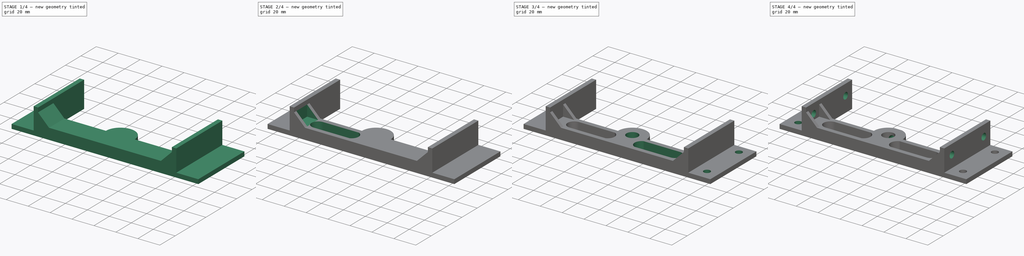
[diagram: build sequence overview — one tinted view per stage of 4, left to right]
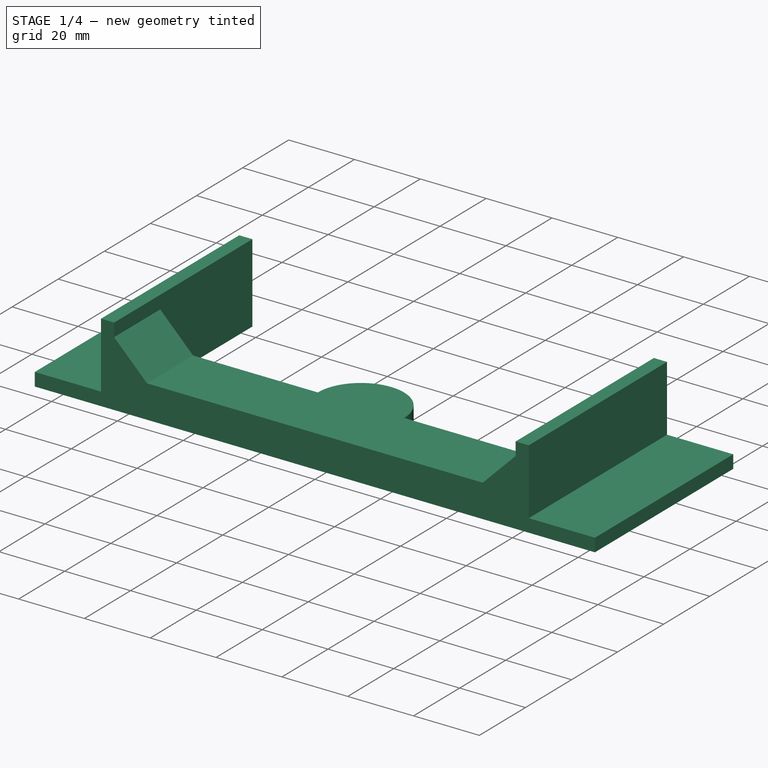
[diagram: stage 1 of 4 — iso view after this stage's code; geometry added in this stage tinted green]
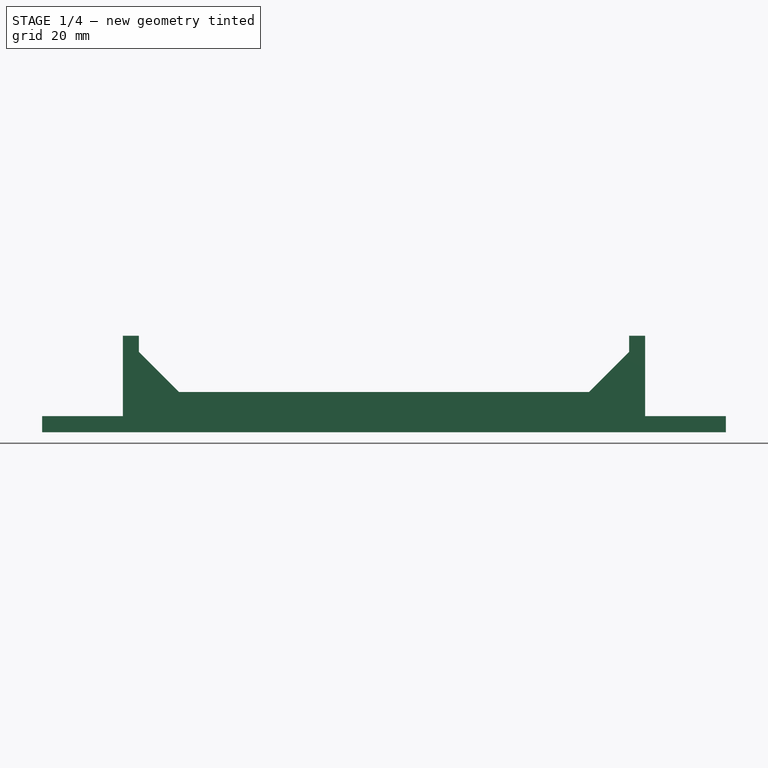
[diagram: stage 1 of 4 — front view after this stage's code; geometry added in this stage tinted green]
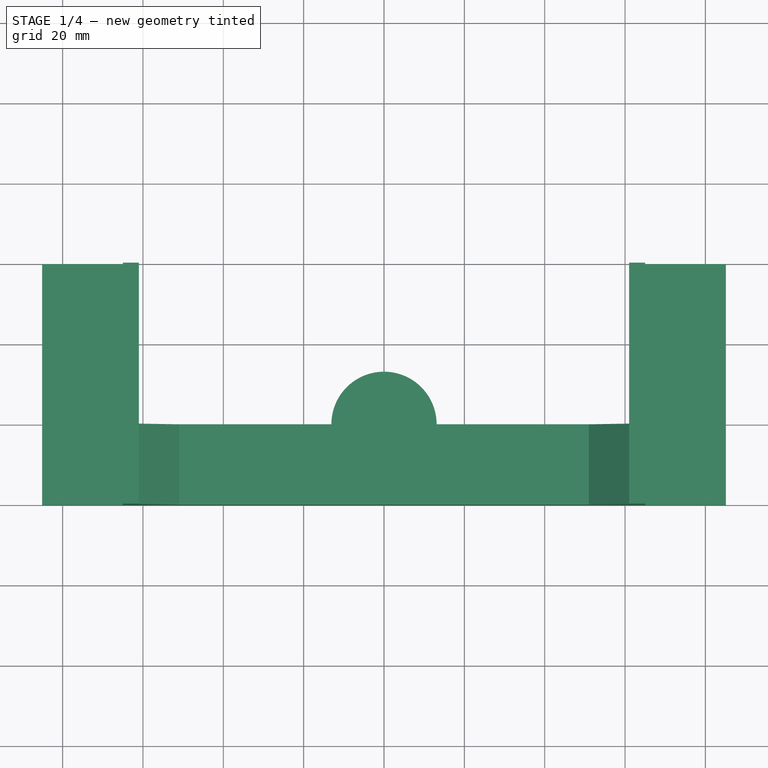
[diagram: stage 1 of 4 — top view after this stage's code; geometry added in this stage tinted green]
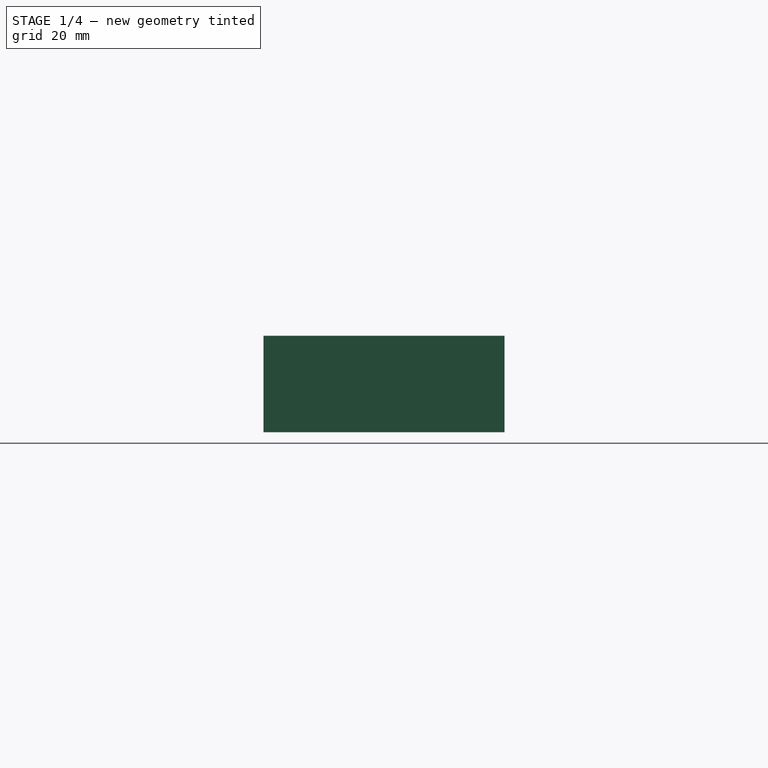
[diagram: stage 1 of 4 — right view after this stage's code; geometry added in this stage tinted green]
FCSTD DOCUMENT
Label: Z_Top
objects: Sketcher::SketchObject×11, PartDesign::Pocket×10, PartDesign::Mirrored×3, PartDesign::Pad×1, Part::Feature×1
note: 37 computed .brp shape members not serialized (recipe doc carries the construction recipe); baked Part::Feature solids carry a one-line shape summary decoded from their .brp

FEATURE [Sketcher::SketchObject] Sketch
  sketch-geometry (11):
    g0: LineSegment StartX=-85.1 StartY=60 StartZ=0 EndX=-61 EndY=60 EndZ=0
    g1: LineSegment StartX=85.1 StartY=60 StartZ=0 EndX=85.1 EndY=0 EndZ=0
    g2: LineSegment StartX=85.1 StartY=0 StartZ=0 EndX=-85.1 EndY=0 EndZ=0
    g3: LineSegment StartX=-85.1 StartY=0 StartZ=0 EndX=-85.1 EndY=60 EndZ=0
    g4: GeomPoint [constr] X=0 Y=0 Z=0
    g5: LineSegment StartX=61 StartY=60 StartZ=0 EndX=61 EndY=20 EndZ=0
    g6: LineSegment StartX=61 StartY=20 StartZ=0 EndX=13.1 EndY=20 EndZ=0
    g7: LineSegment StartX=-61 StartY=20 StartZ=0 EndX=-61 EndY=60 EndZ=0
    g8: LineSegment StartX=61 StartY=60 StartZ=0 EndX=85.1 EndY=60 EndZ=0
    g9: ArcOfCircle CenterX=0 CenterY=20 CenterZ=0 NormalX=0 NormalY=0 NormalZ=1 Radius=13.1 StartAngle=0 EndAngle=3.14159
    g10: LineSegment StartX=-13.1 StartY=20 StartZ=0 EndX=-61 EndY=20 EndZ=0
  constraints (29):
    c: Coincident(g8,g1)
    c: Coincident(g1,g2)
    c: Coincident(g2,g3)
    c: Coincident(g3,g0)
    c: Horizontal(g0)
    c: Horizontal(g2)
    c: Vertical(g1)
    c: Vertical(g3)
    c: Symmetric(g2,g1,g4)
    c: Coincident(g4,g-1)
    c: DistanceX(g2) = -170.2
    c: Coincident(g5,g6)
    c: Coincident(g10,g7)
    c: Horizontal(g6)
    c: Vertical(g5)
    c: Vertical(g7)
    c: Coincident(g0,g7)
    c: Coincident(g8,g5)
    c: Tangent(g0,g8)
    c: Equal(g0,g8)
    c: Tangent(g6,g10)
    c: Coincident(g9,g6)
    c: Coincident(g9,g10)
    c: PointOnObject(g9,g10)
    c: DistanceY(g3) = 60
    c: DistanceY(g7) = 40
    c: Equal(g10,g6)
    c: Radius(g9) = 13.1
    c: DistanceX(g5,g0) = -122
FEATURE [PartDesign::Pad] Pad
  Length = 24
  Length2 = 100
  Sketch = -> Sketch
  Type = 0
FEATURE [Sketcher::SketchObject] Sketch001
  ExternalGeometry = -> [Pad]
  Placement = pos=(0,0,0) rot=(1,0,0;1.5708rad)
  Support = -> Pad [Face8]
  sketch-geometry (4):
    g0: LineSegment StartX=-86.1 StartY=25 StartZ=0 EndX=-65 EndY=25 EndZ=0
    g1: LineSegment StartX=-65 StartY=25 StartZ=0 EndX=-65 EndY=4 EndZ=0
    g2: LineSegment StartX=-65 StartY=4 StartZ=0 EndX=-86.1 EndY=4 EndZ=0
    g3: LineSegment StartX=-86.1 StartY=4 StartZ=0 EndX=-86.1 EndY=25 EndZ=0
  constraints (12):
    c: Coincident(g0,g1)
    c: Coincident(g1,g2)
    c: Coincident(g2,g3)
    c: Coincident(g3,g0)
    c: Horizontal(g0)
    c: Horizontal(g2)
    c: Vertical(g1)
    c: Vertical(g3)
    c: DistanceX(g0,g-3) = -20.1
    c: DistanceY(g2,g-3) = -4
    c: DistanceX(g-3,g0) = -1
    c: DistanceY(g0,g-3) = -1
FEATURE [PartDesign::Pocket] Pocket
  Length = 5
  Sketch = -> Sketch001
  Type = 1
FEATURE [Sketcher::SketchObject] Sketch002
  ExternalGeometry = -> [Pocket]
  Placement = pos=(0,0,0) rot=(1,0,0;1.5708rad)
  Support = -> Pocket [Face14]
  sketch-geometry (4):
    g0: LineSegment StartX=65 StartY=25 StartZ=0 EndX=86.1 EndY=25 EndZ=0
    g1: LineSegment StartX=86.1 StartY=25 StartZ=0 EndX=86.1 EndY=4 EndZ=0
    g2: LineSegment StartX=86.1 StartY=4 StartZ=0 EndX=65 EndY=4 EndZ=0
    g3: LineSegment StartX=65 StartY=4 StartZ=0 EndX=65 EndY=25 EndZ=0
  constraints (12):
    c: Coincident(g0,g1)
    c: Coincident(g1,g2)
    c: Coincident(g2,g3)
    c: Coincident(g3,g0)
    c: Horizontal(g0)
    c: Horizontal(g2)
    c: Vertical(g1)
    c: Vertical(g3)
    c: DistanceY(g1,g-3) = -4
    c: DistanceX(g-3,g0) = 1
    c: DistanceY(g0,g-3) = -1
    c: DistanceX(g0,g-4) = -4
FEATURE [PartDesign::Pocket] Pocket001
  Length = 5
  Sketch = -> Sketch002
  Type = 1
FEATURE [Sketcher::SketchObject] Sketch003
  ExternalGeometry = -> [Pocket001]
  Placement = pos=(0,0,0) rot=(1,0,0;1.5708rad)
  Support = -> Pocket001 [Face14]
  sketch-geometry (7):
    g0: LineSegment StartX=-61 StartY=25 StartZ=0 EndX=61 EndY=25 EndZ=0
    g1: LineSegment StartX=61 StartY=25 StartZ=0 EndX=61 EndY=20 EndZ=0
    g2: LineSegment StartX=51 StartY=10 StartZ=0 EndX=-51 EndY=10 EndZ=0
    g3: LineSegment StartX=-61 StartY=20 StartZ=0 EndX=-61 EndY=25 EndZ=0
    g4: GeomPoint [constr] X=0 Y=25 Z=0
    g5: LineSegment StartX=-61 StartY=20 StartZ=0 EndX=-51 EndY=10 EndZ=0
    g6: LineSegment StartX=51 StartY=10 StartZ=0 EndX=61 EndY=20 EndZ=0
  constraints (19):
    c: Coincident(g0,g1)
    c: Coincident(g3,g0)
    c: Horizontal(g0)
    c: Horizontal(g2)
    c: Vertical(g1)
    c: Vertical(g3)
    c: Symmetric(g0,g0,g4)
    c: PointOnObject(g4,g-2)
    c: DistanceY(g-4,g0) = 1
    c: Coincident(g5,g3)
    c: Coincident(g5,g2)
    c: Coincident(g6,g1)
    c: DistanceX(g0,g-4) = 4
    c: Equal(g3,g1)
    c: Equal(g6,g5)
    c: Coincident(g2,g6)
    c: DistanceY(g2,g-4) = -6
    c: Angle(g-3,g6) = 0.785398
    c: DistanceY(g2,g1) = 10
FEATURE [PartDesign::Pocket] Pocket002
  Length = 5
  Sketch = -> Sketch003
  Type = 1
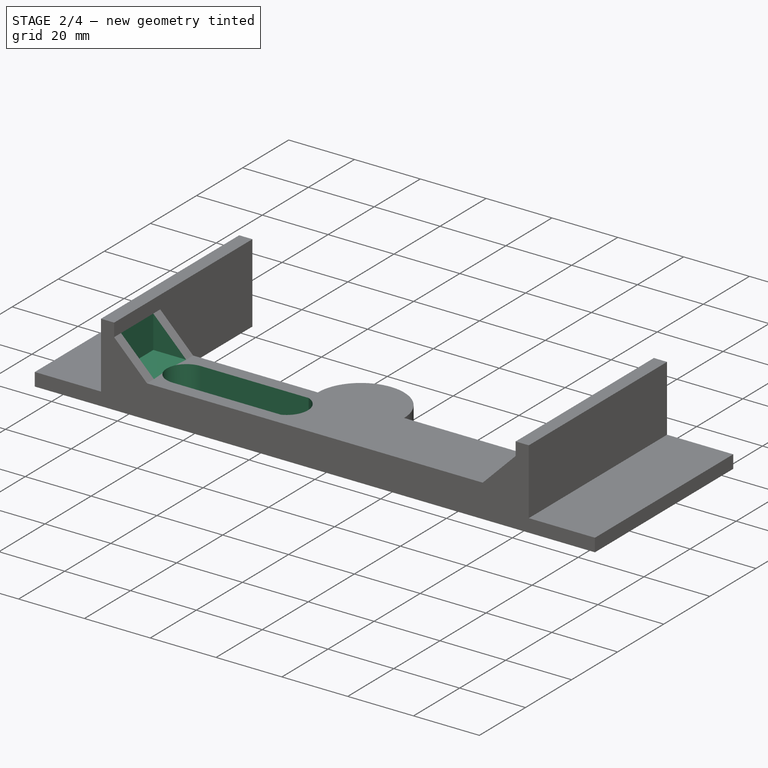
[diagram: stage 2 of 4 — iso view after this stage's code; geometry added in this stage tinted green]
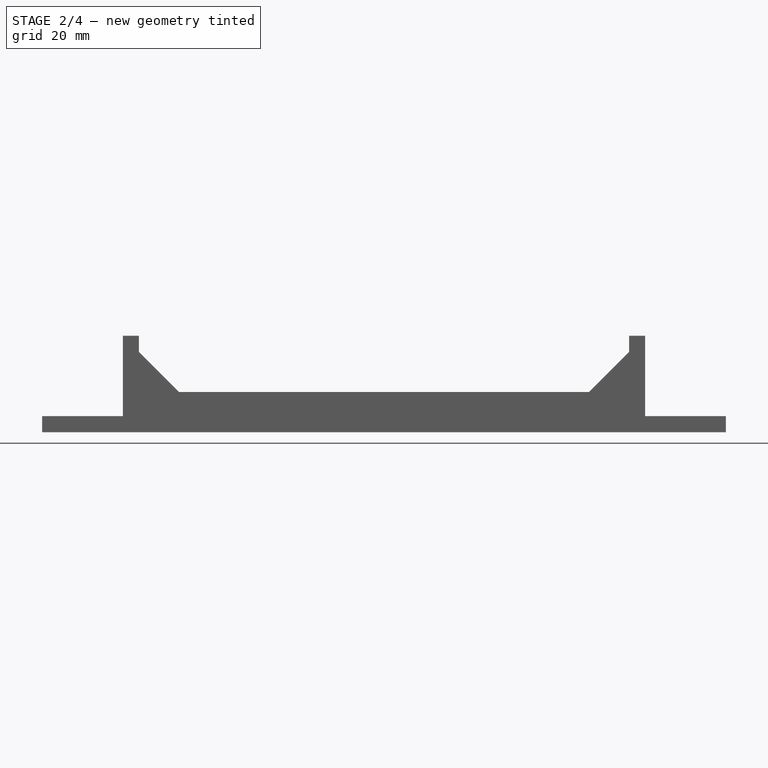
[diagram: stage 2 of 4 — front view after this stage's code; geometry added in this stage tinted green]
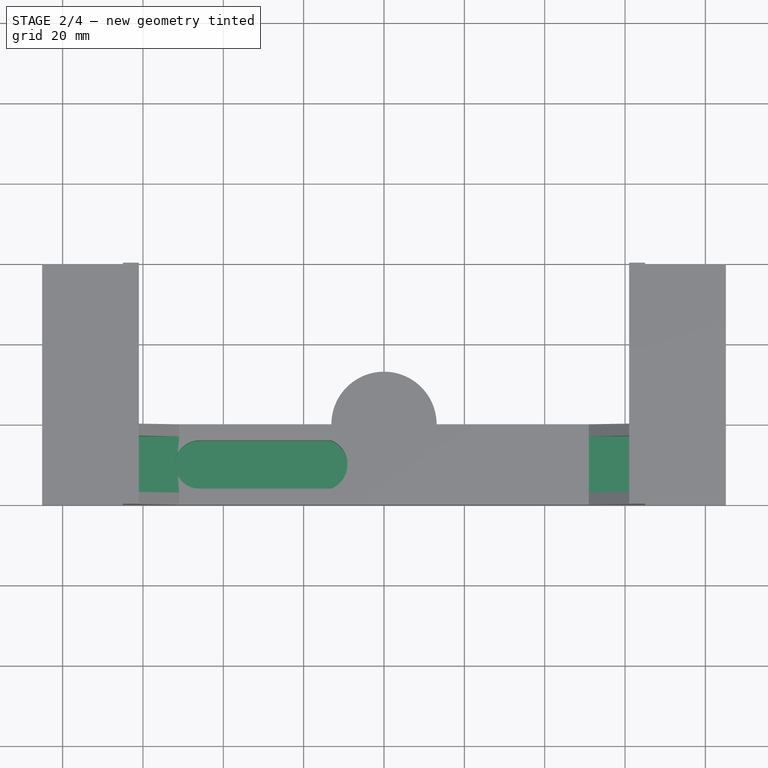
[diagram: stage 2 of 4 — top view after this stage's code; geometry added in this stage tinted green]
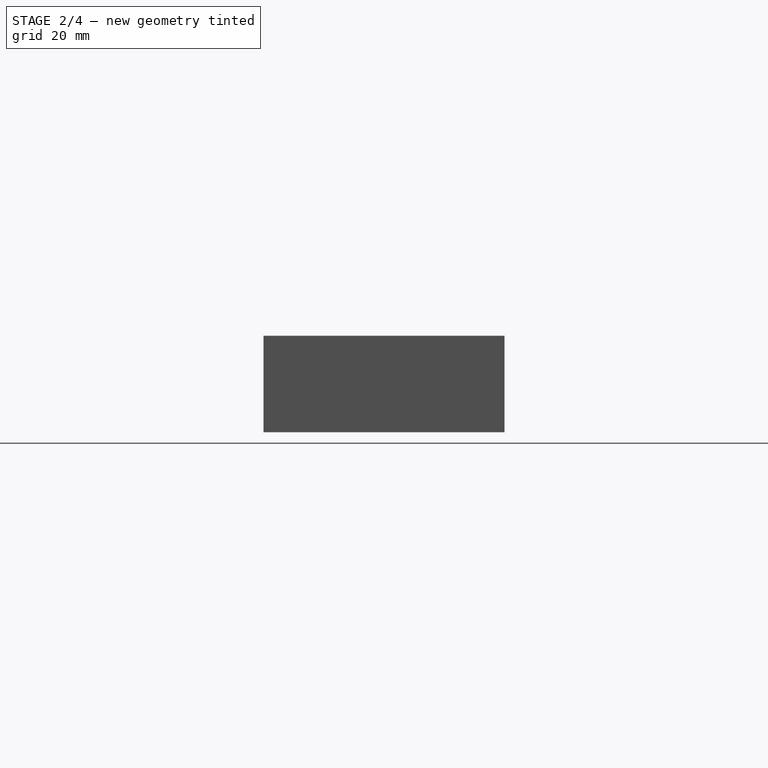
[diagram: stage 2 of 4 — right view after this stage's code; geometry added in this stage tinted green]
FEATURE [Sketcher::SketchObject] Sketch004
  ExternalGeometry = -> [Pocket002]
  Placement = pos=(0,0,24) rot=(0,0,1;0rad)
  Support = -> Pocket002 [Face22]
  sketch-geometry (6):
    g0: LineSegment StartX=-61 StartY=17 StartZ=0 EndX=-51 EndY=17 EndZ=0
    g1: LineSegment StartX=-51 StartY=17 StartZ=0 EndX=-51 EndY=3 EndZ=0
    g2: LineSegment StartX=-51 StartY=3 StartZ=0 EndX=-61 EndY=3 EndZ=0
    g3: LineSegment StartX=-61 StartY=3 StartZ=0 EndX=-61 EndY=17 EndZ=0
    g4: GeomPoint [constr] X=-51 Y=10 Z=0
    g5: GeomPoint [constr] X=-51 Y=10 Z=0
  constraints (13):
    c: Coincident(g0,g1)
    c: Coincident(g1,g2)
    c: Coincident(g2,g3)
    c: Coincident(g3,g0)
    c: Horizontal(g0)
    c: Horizontal(g2)
    c: Vertical(g1)
    c: Vertical(g3)
    c: PointOnObject(g2,g-3)
    c: Symmetric(g1,g0,g4)
    c: Symmetric(g-4,g-4,g5)
    c: Coincident(g5,g4)
    c: DistanceY(g1,g-4) = -3
FEATURE [PartDesign::Pocket] Pocket003
  Length = 0
  Sketch = -> Sketch004
  Type = 3
  UpToFace = -> Pocket002 [Face14]
FEATURE [PartDesign::Mirrored] Mirrored
  Originals = -> [Pocket003]
  StdMirrorPlane = YZ
FEATURE [Sketcher::SketchObject] Sketch005
  ExternalGeometry = -> [Mirrored]
  Placement = pos=(0,0,10) rot=(0,0,1;0rad)
  Support = -> Mirrored [Face14]
  sketch-geometry (6):
    g0: LineSegment StartX=-13.1 StartY=16 StartZ=0 EndX=-46 EndY=16 EndZ=0
    g1: ArcOfCircle CenterX=-46 CenterY=10 CenterZ=0 NormalX=0 NormalY=0 NormalZ=1 Radius=6 StartAngle=1.5708 EndAngle=4.71239
    g2: LineSegment StartX=-46 StartY=4 StartZ=0 EndX=-13.1 EndY=4 EndZ=0
    g3: ArcOfCircle CenterX=-15.6 CenterY=10 CenterZ=0 NormalX=0 NormalY=0 NormalZ=1 Radius=6.5 StartAngle=5.10718 EndAngle=7.45919
    g4: GeomPoint [constr] X=-51 Y=10 Z=0
    g5: LineSegment [constr] StartX=-51 StartY=10 StartZ=0 EndX=-46 EndY=10 EndZ=0
  constraints (15):
    c: Horizontal(g0)
    c: Tangent(g0,g1)
    c: Tangent(g1,g2)
    c: Horizontal(g2)
    c: Equal(g0,g2)
    c: Coincident(g3,g0)
    c: Coincident(g3,g2)
    c: Radius(g1) = 6
    c: Radius(g3) = 6.5
    c: Symmetric(g-3,g-3,g4)
    c: Coincident(g5,g4)
    c: Horizontal(g5)
    c: Coincident(g5,g1)
    c: DistanceX(g-3,g1) = 5
    c: DistanceX(g0) = -32.9
FEATURE [PartDesign::Pocket] Pocket004
  Length = 7
  Sketch = -> Sketch005
  Type = 0
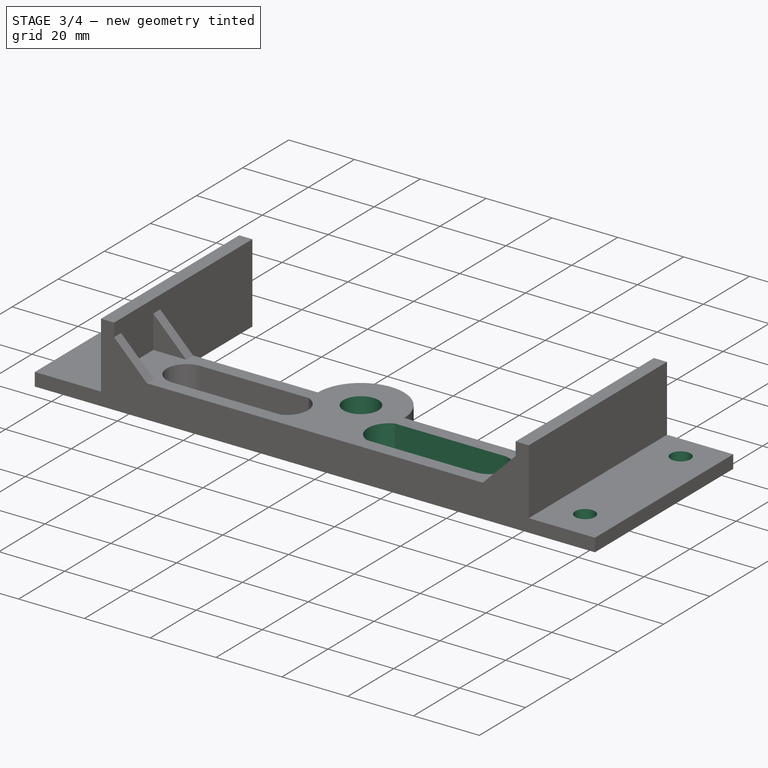
[diagram: stage 3 of 4 — iso view after this stage's code; geometry added in this stage tinted green]
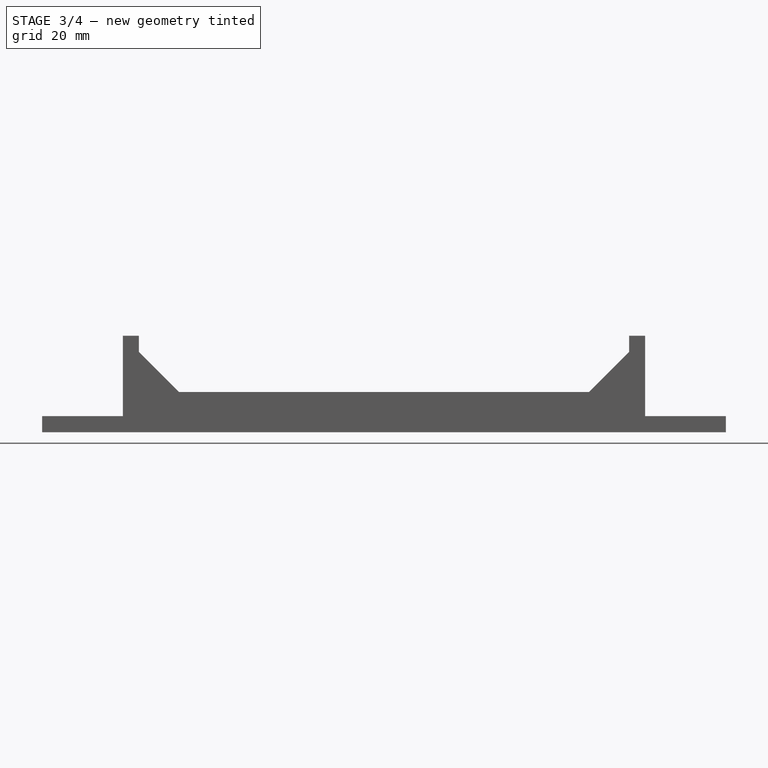
[diagram: stage 3 of 4 — front view after this stage's code; geometry added in this stage tinted green]
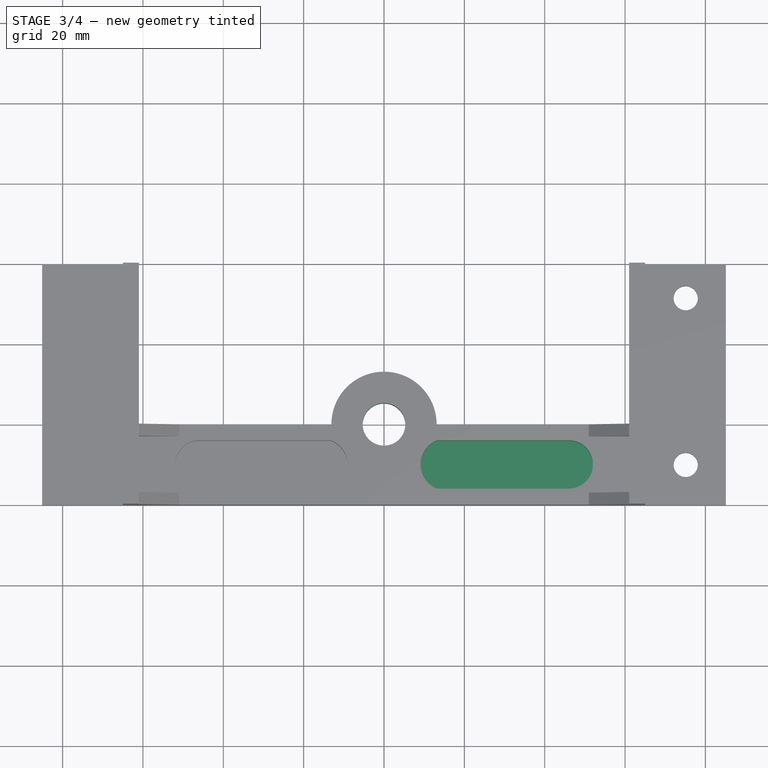
[diagram: stage 3 of 4 — top view after this stage's code; geometry added in this stage tinted green]
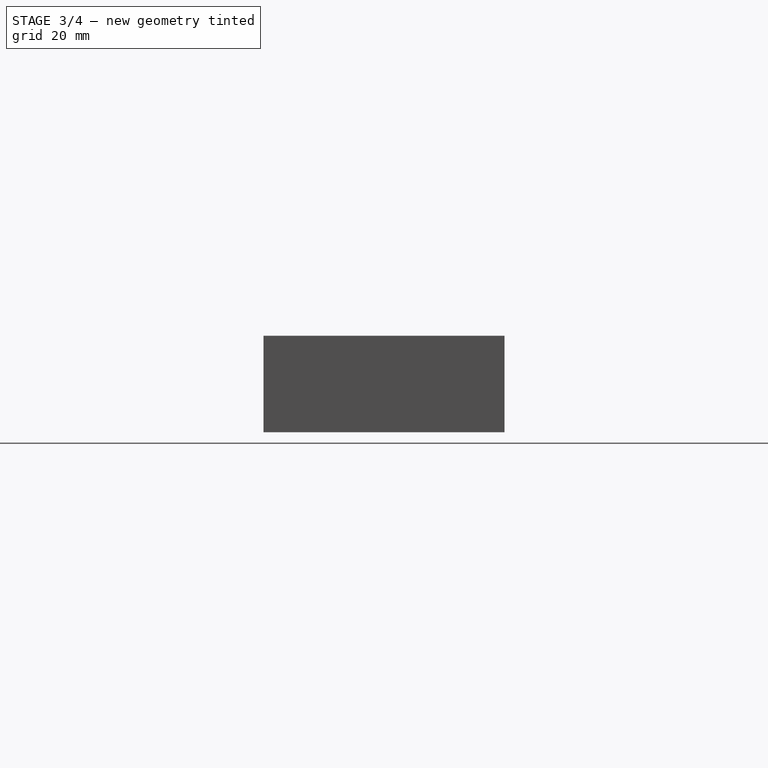
[diagram: stage 3 of 4 — right view after this stage's code; geometry added in this stage tinted green]
FEATURE [PartDesign::Mirrored] Mirrored001
  Originals = -> [Pocket004]
  StdMirrorPlane = YZ
FEATURE [Sketcher::SketchObject] Sketch006
  ExternalGeometry = -> [Mirrored001]
  Placement = pos=(0,0,10) rot=(0,0,1;0rad)
  Support = -> Mirrored001 [Face14]
  sketch-geometry (1):
    g0: Circle CenterX=0 CenterY=20 CenterZ=0 NormalX=0 NormalY=0 NormalZ=1 Radius=5.3
  constraints (2):
    c: Coincident(g0,g-3)
    c: Radius(g0) = 5.3
FEATURE [PartDesign::Pocket] Pocket005
  Length = 5
  Sketch = -> Sketch006
  Type = 1
FEATURE [Sketcher::SketchObject] Sketch007
  ExternalGeometry = -> [Pocket005]
  Placement = pos=(0,0,4) rot=(0,0,1;0rad)
  Support = -> Pocket005 [Face27]
  sketch-geometry (2):
    g0: Circle CenterX=75.1 CenterY=10 CenterZ=0 NormalX=0 NormalY=0 NormalZ=1 Radius=3
    g1: Circle CenterX=75.1 CenterY=51.5 CenterZ=0 NormalX=0 NormalY=0 NormalZ=1 Radius=3
  constraints (6):
    c: Equal(g0,g1)
    c: DistanceX(g-3,g0) = 10.1
    c: DistanceY(g-3,g0) = 10
    c: Radius(g0) = 3
    c: DistanceX(g1,g-3) = -10.1
    c: DistanceY(g1,g-3) = 8.5
FEATURE [PartDesign::Pocket] Pocket006
  Length = 5
  Sketch = -> Sketch007
  Type = 1
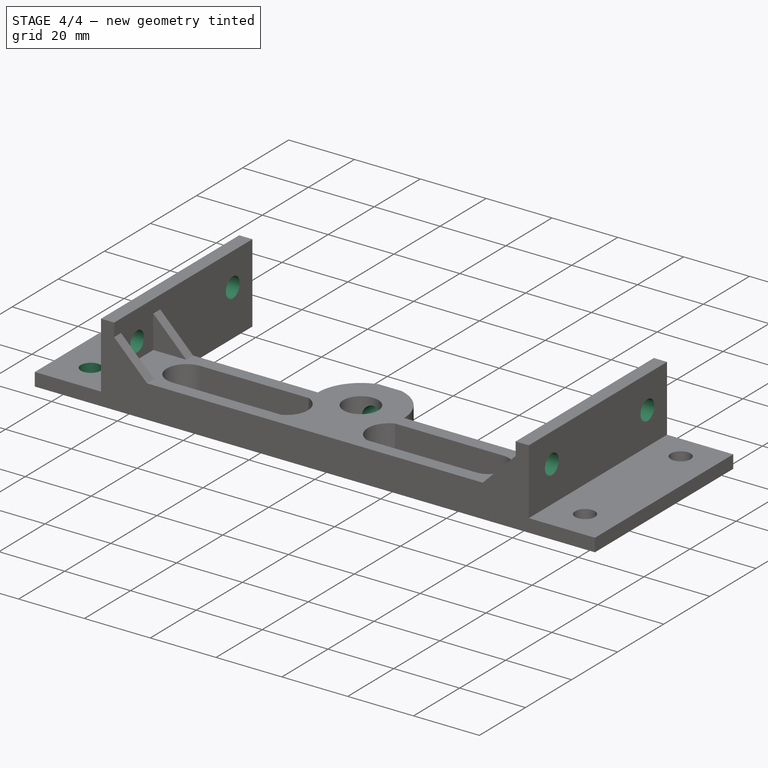
[diagram: stage 4 of 4 — iso view after this stage's code; geometry added in this stage tinted green]
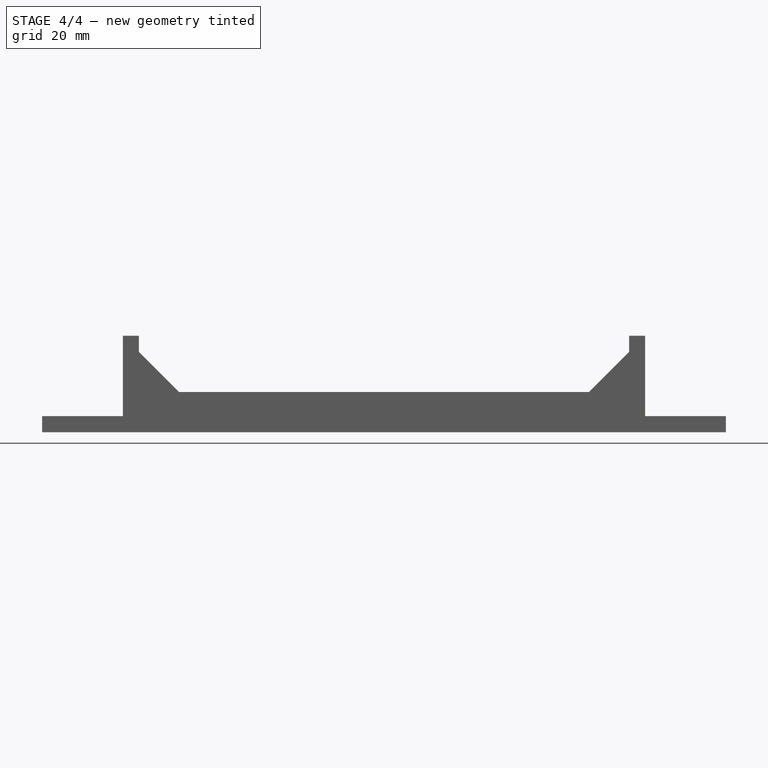
[diagram: stage 4 of 4 — front view after this stage's code; geometry added in this stage tinted green]
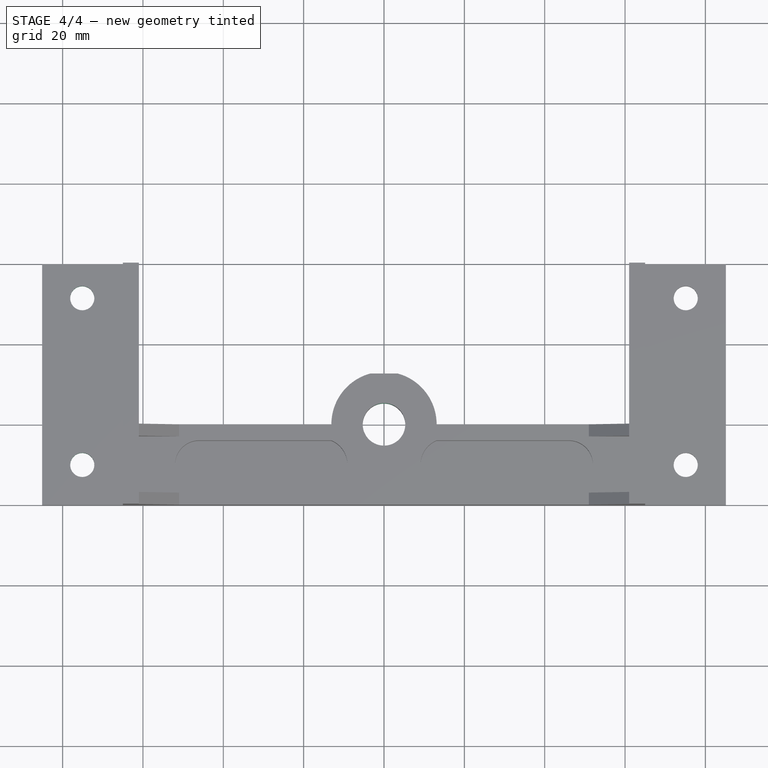
[diagram: stage 4 of 4 — top view after this stage's code; geometry added in this stage tinted green]
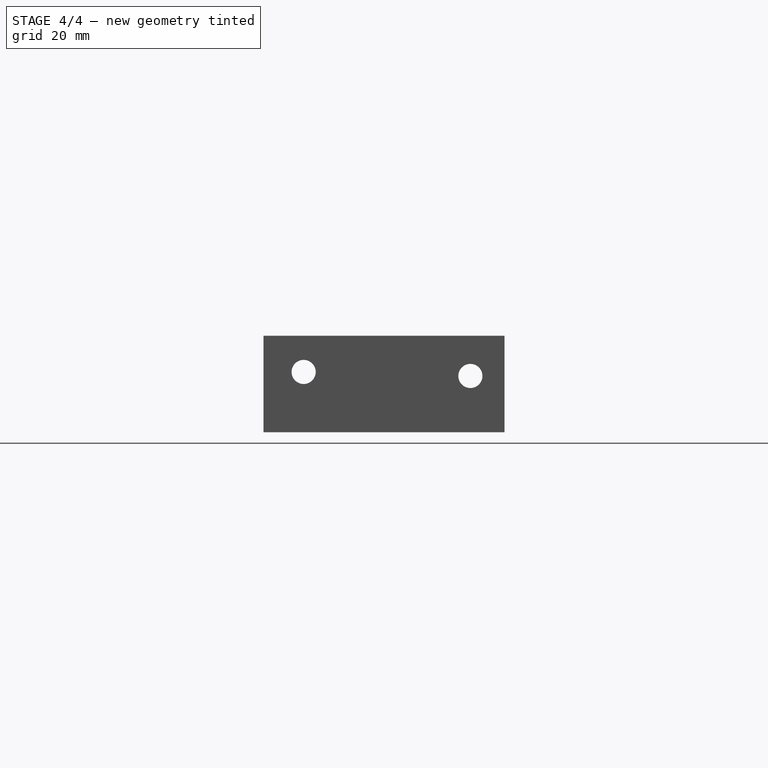
[diagram: stage 4 of 4 — right view after this stage's code; geometry added in this stage tinted green]
FEATURE [PartDesign::Mirrored] Mirrored002
  Originals = -> [Pocket006]
  StdMirrorPlane = YZ
FEATURE [Sketcher::SketchObject] Sketch008
  ExternalGeometry = -> [Mirrored002]
  Placement = pos=(65,0,0) rot=(0.57735,0.57735,0.57735;2.0944rad)
  Support = -> Mirrored002 [Face31]
  sketch-geometry (2):
    g0: Circle CenterX=51.5 CenterY=14 CenterZ=0 NormalX=0 NormalY=0 NormalZ=1 Radius=3
    g1: Circle CenterX=10 CenterY=15 CenterZ=0 NormalX=0 NormalY=0 NormalZ=1 Radius=3
  constraints (6):
    c: Equal(g0,g1)
    c: Radius(g1) = 3
    c: DistanceY(g1,g-3) = 9
    c: DistanceX(g1,g-3) = -10
    c: DistanceY(g0,g-3) = 10
    c: DistanceX(g0,g-3) = 8.5
FEATURE [PartDesign::Pocket] Pocket007
  Length = 5
  Sketch = -> Sketch008
  Type = 1
FEATURE [Sketcher::SketchObject] Sketch010
  ExternalGeometry = -> [Pocket007]
  Placement = pos=(0,0,10) rot=(0,0,1;0rad)
  Support = -> Pocket007 [Face19]
  sketch-geometry (4):
    g0: LineSegment StartX=-10 StartY=37.654 StartZ=0 EndX=10 EndY=37.654 EndZ=0
    g1: LineSegment StartX=10 StartY=37.654 StartZ=0 EndX=10 EndY=32.654 EndZ=0
    g2: LineSegment StartX=10 StartY=32.654 StartZ=0 EndX=-10 EndY=32.654 EndZ=0
    g3: LineSegment StartX=-10 StartY=32.654 StartZ=0 EndX=-10 EndY=37.654 EndZ=0
  constraints (12):
    c: Coincident(g0,g1)
    c: Coincident(g1,g2)
    c: Coincident(g2,g3)
    c: Coincident(g3,g0)
    c: Horizontal(g0)
    c: Horizontal(g2)
    c: Vertical(g1)
    c: Vertical(g3)
    c: Symmetric(g0,g0,g-2)
    c: DistanceX(g0) = 20
    c: DistanceY(g3) = 5
    c: DistanceY(g-3,g1) = 12.654
FEATURE [PartDesign::Pocket] Pocket008
  Length = 5
  Sketch = -> Sketch010
  Type = 1
FEATURE [Sketcher::SketchObject] Sketch009
  Placement = pos=(0,32.654,0) rot=(0,0.707107,0.707107;3.14159rad)
  Support = -> Pocket008 [Face17]
  sketch-geometry (1):
    g0: Circle CenterX=0 CenterY=5 CenterZ=0 NormalX=0 NormalY=0 NormalZ=1 Radius=2.8
  constraints (3):
    c: PointOnObject(g0,g-2)
    c: Radius(g0) = 2.8
    c: DistanceY(g-1,g0) = 5
FEATURE [PartDesign::Pocket] Pocket009
  Length = 10
  Sketch = -> Sketch009
  Type = 0
FEATURE [Part::Feature] Pocket009001  label="Refine"
  shape: bbox 170.2 x 60 x 24 mm, 48 faces (baked)
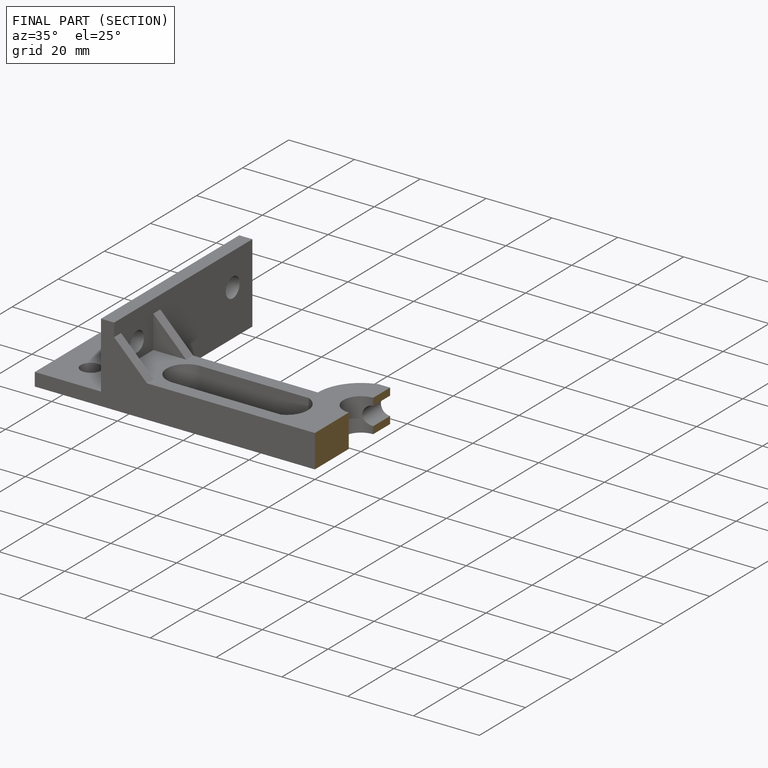
[diagram: finished part — half-section view (interior)]
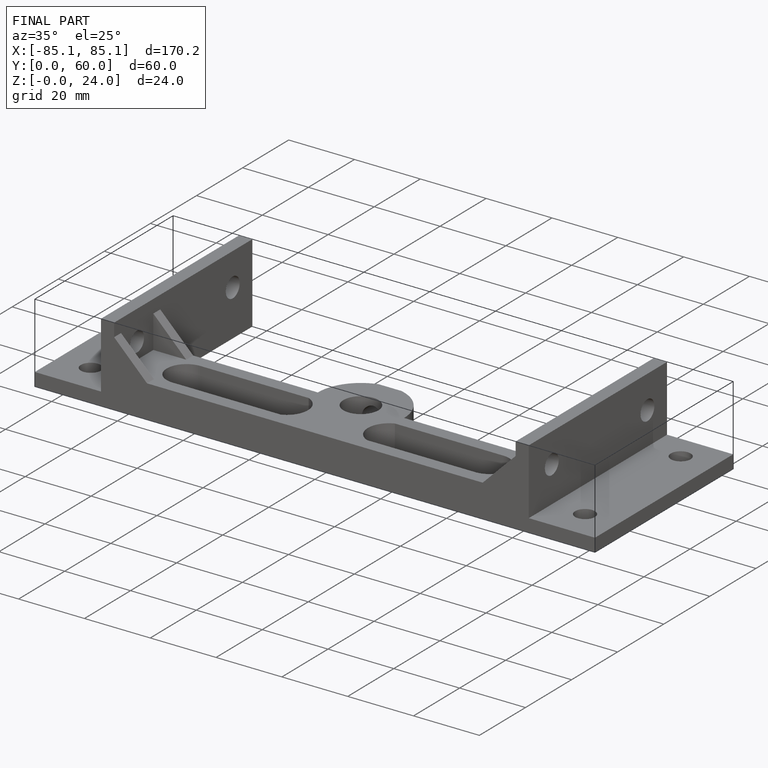
[diagram: finished part — iso view with bounding-box wireframe]
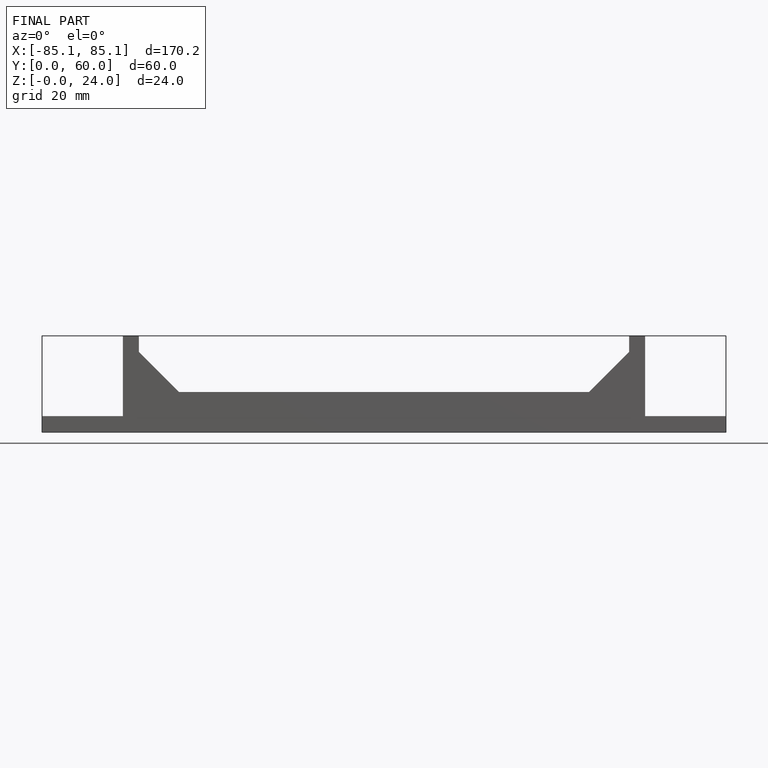
[diagram: finished part — front view with bounding-box wireframe]
